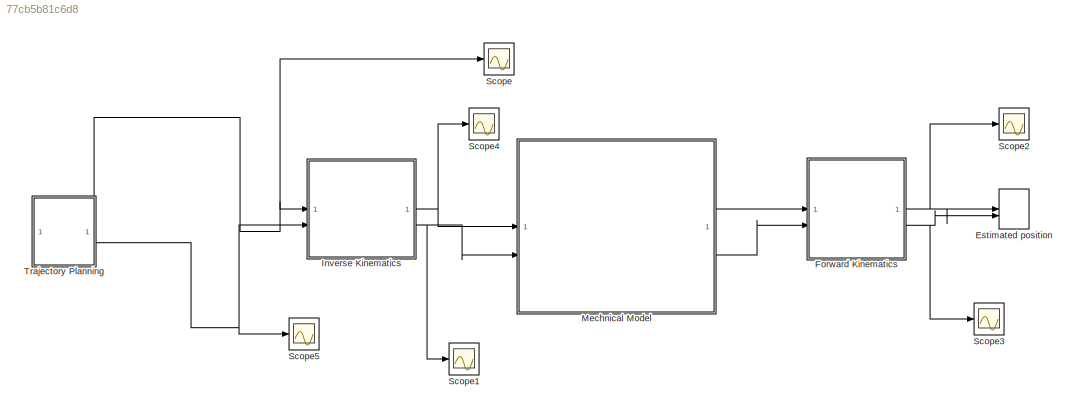
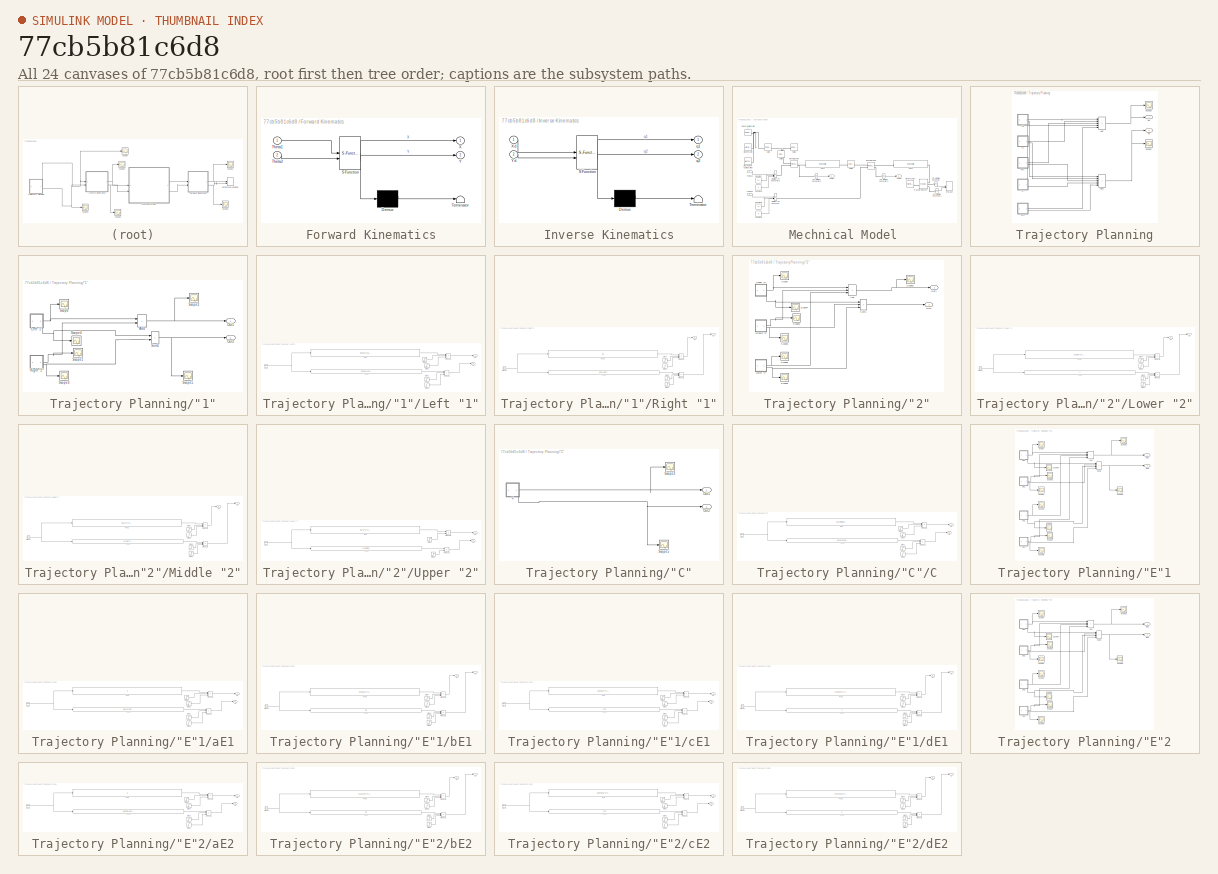
[diagram: thumbnail index - all 24 canvases of the model, root first then tree order]
MODEL slx_77cb5b81c6d8
KIND model
CONFIG AbsTol = auto
CONFIG EnableMultiTasking = on
CONFIG FixedStep = auto
CONFIG MaxStep = auto
CONFIG MinStep = auto
CONFIG RelTol = 1e-3
CONFIG SampleTimeConstraint = Unconstrained
CONFIG SolverName = VariableStepAuto
CONFIG StartTime = 0.0
CONFIG StopTime = 15
BLOCK [Record] Estimated position
  CompatibilityTag = XY
  FileSettingsInternal = {"entries":[{"content":{"excelSettings":{"content":{},"type":"Streamout.ExcelSettings"}},"type":"Streamout.FileSettingStorage","uuid":""}],"packageUris":["http:\/\/schema.mathworks.com\/mf0\/streamout_blocks\/R2020a"],"version":"1.0"}
  Layout = [1 1]
  SignalsInternal = {"entries":[{"content":{"signals":[{"content":{"blockPath":[],"dimensions":[1],"domain":"","lineColor":"#a2142f","plots":[ 1 ],"port":1,"sid":[""],"signalID":1,"signalName":"Forward Kinematics:1"},"type":"RecordBlkView.Signal","uuid":""},{"content":{"blockPath":[],"dimensions":[1],"domain":"","lineColor":"#139fff","plots":[ 1 ],"port":2,"sid":[""],"signalID":2,"signalName":"Forward Kinematics:2"},...<+186ch>
  VisualizationBindings = {"xyplotplugin":{"info":[{"series":[{"bindingParametersList":[{"parameter":"X-Axis","signalID":1,"signalName":"Forward Kinematics:1"},{"parameter":"Y-Axis","signalID":2,"signalName":"Forward Kinematics:2"}],"seriesID":0}],"subplotID":1}]}}
  st = -1
BLOCK [SubSystem] Forward Kinematics
  ErrorFcn = Stateflow.Translate.translate
  PermitHierarchicalResolution = ExplicitOnly
  SFBlockType = MATLAB Function
  TreatAsAtomicUnit = on
BLOCK [Demux] Forward Kinematics/ Demux 
  Outputs = 1
BLOCK [S-Function] Forward Kinematics/ SFunction 
  EnableBusSupport = on
  FunctionName = sf_sfun
  PortCounts = [2 3]
  SFcnIsStateOwnerBlock = off
  SFunctionDeploymentMode = off
  Tag = Stateflow S-Function 2
BLOCK [Terminator] Forward Kinematics/ Terminator 
BLOCK [Inport] Forward Kinematics/Theta1
BLOCK [Inport] Forward Kinematics/Theta2
  Port = 2
BLOCK [Outport] Forward Kinematics/X
  VectorParamsAs1DForOutWhenUnconnected = off
BLOCK [Outport] Forward Kinematics/Y
  Port = 2
  VectorParamsAs1DForOutWhenUnconnected = off
BLOCK [SubSystem] Inverse Kinematics
  ErrorFcn = Stateflow.Translate.translate
  PermitHierarchicalResolution = ExplicitOnly
  SFBlockType = MATLAB Function
  TreatAsAtomicUnit = on
BLOCK [Demux] Inverse Kinematics/ Demux 
  Outputs = 1
BLOCK [S-Function] Inverse Kinematics/ SFunction 
  EnableBusSupport = on
  FunctionName = sf_sfun
  PortCounts = [2 3]
  SFcnIsStateOwnerBlock = off
  SFunctionDeploymentMode = off
  Tag = Stateflow S-Function 1
BLOCK [Terminator] Inverse Kinematics/ Terminator 
BLOCK [Inport] Inverse Kinematics/Xd
BLOCK [Inport] Inverse Kinematics/Yd
  Port = 2
BLOCK [Outport] Inverse Kinematics/q1
  VectorParamsAs1DForOutWhenUnconnected = off
BLOCK [Outport] Inverse Kinematics/q2
  Port = 2
  VectorParamsAs1DForOutWhenUnconnected = off
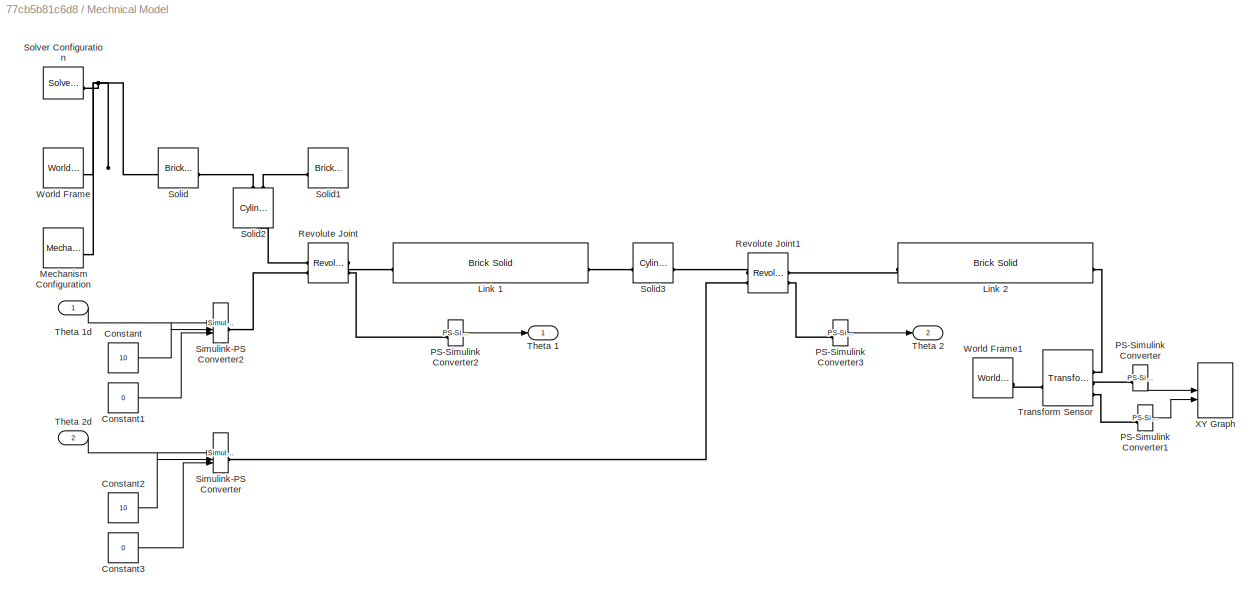
BLOCK [SubSystem] Mechnical Model 
BLOCK [Constant] Mechnical Model /Constant
  Value = 10
BLOCK [Constant] Mechnical Model /Constant1
  Value = 0
BLOCK [Constant] Mechnical Model /Constant2
  Value = 10
BLOCK [Constant] Mechnical Model /Constant3
  Value = 0
BLOCK [Reference] Mechnical Model /Link 1  REF=sm_lib/Body Elements/Brick Solid
  SourceBlock = sm_lib/Body Elements/Brick Solid
  SourceType = Brick Solid
BLOCK [Reference] Mechnical Model /Link 2  REF=sm_lib/Body Elements/Brick Solid
  SourceBlock = sm_lib/Body Elements/Brick Solid
  SourceType = Brick Solid
BLOCK [Reference] Mechnical Model /Mechanism Configuration  REF=sm_lib/Utilities/Mechanism
Configuration
  SourceBlock = sm_lib/Utilities/Mechanism\nConfiguration
  SourceType = Mechanism\nConfiguration
BLOCK [Reference] Mechnical Model /PS-Simulink Converter  REF=nesl_utility/PS-Simulink
Converter
  SourceBlock = nesl_utility/PS-Simulink\nConverter
  SourceType = PS-Simulink\nConverter
BLOCK [Reference] Mechnical Model /PS-Simulink Converter1  REF=nesl_utility/PS-Simulink
Converter
  SourceBlock = nesl_utility/PS-Simulink\nConverter
  SourceType = PS-Simulink\nConverter
BLOCK [Reference] Mechnical Model /PS-Simulink Converter2  REF=nesl_utility/PS-Simulink
Converter
  SourceBlock = nesl_utility/PS-Simulink\nConverter
  SourceType = PS-Simulink\nConverter
BLOCK [Reference] Mechnical Model /PS-Simulink Converter3  REF=nesl_utility/PS-Simulink
Converter
  SourceBlock = nesl_utility/PS-Simulink\nConverter
  SourceType = PS-Simulink\nConverter
BLOCK [Reference] Mechnical Model /Revolute Joint  REF=sm_lib/Joints/Revolute Joint
  SourceBlock = sm_lib/Joints/Revolute Joint
  SourceType = Revolute Joint
BLOCK [Reference] Mechnical Model /Revolute Joint1  REF=sm_lib/Joints/Revolute Joint
  SourceBlock = sm_lib/Joints/Revolute Joint
  SourceType = Revolute Joint
BLOCK [Reference] Mechnical Model /Simulink-PS Converter  REF=nesl_utility/Simulink-PS
Converter
  SourceBlock = nesl_utility/Simulink-PS\nConverter
  SourceType = Simulink-PS\nConverter
BLOCK [Reference] Mechnical Model /Simulink-PS Converter2  REF=nesl_utility/Simulink-PS
Converter
  SourceBlock = nesl_utility/Simulink-PS\nConverter
  SourceType = Simulink-PS\nConverter
BLOCK [Reference] Mechnical Model /Solid  REF=sm_lib/Body Elements/Brick Solid
  NameLocation = top
  SourceBlock = sm_lib/Body Elements/Brick Solid
  SourceType = Brick Solid
BLOCK [Reference] Mechnical Model /Solid1  REF=sm_lib/Body Elements/Brick Solid
  SourceBlock = sm_lib/Body Elements/Brick Solid
  SourceType = Brick Solid
BLOCK [Reference] Mechnical Model /Solid2  REF=sm_lib/Body Elements/Cylindrical Solid
  NameLocation = left
  SourceBlock = sm_lib/Body Elements/Cylindrical Solid
  SourceType = Cylindrical Solid
BLOCK [Reference] Mechnical Model /Solid3  REF=sm_lib/Body Elements/Cylindrical Solid
  SourceBlock = sm_lib/Body Elements/Cylindrical Solid
  SourceType = Cylindrical Solid
BLOCK [Reference] Mechnical Model /Solver Configuration  REF=nesl_utility/Solver
Configuration
  SourceBlock = nesl_utility/Solver\nConfiguration
  SourceType = Solver\nConfiguration
BLOCK [Outport] Mechnical Model /Theta 1
  VectorParamsAs1DForOutWhenUnconnected = off
BLOCK [Inport] Mechnical Model /Theta 1d
BLOCK [Outport] Mechnical Model /Theta 2
  Port = 2
  VectorParamsAs1DForOutWhenUnconnected = off
BLOCK [Inport] Mechnical Model /Theta 2d
  Port = 2
BLOCK [Reference] Mechnical Model /Transform Sensor  REF=sm_lib/Frames and
Transforms/Transform
Sensor
  SourceBlock = sm_lib/Frames and\nTransforms/Transform\nSensor
  SourceType = Transform\nSensor
BLOCK [Reference] Mechnical Model /World Frame  REF=sm_lib/Frames and
Transforms/World Frame
  SourceBlock = sm_lib/Frames and\nTransforms/World Frame
  SourceType = World Frame
BLOCK [Reference] Mechnical Model /World Frame1  REF=sm_lib/Frames and
Transforms/World Frame
  SourceBlock = sm_lib/Frames and\nTransforms/World Frame
  SourceType = World Frame
BLOCK [Record] Mechnical Model /XY Graph
  CompatibilityTag = XY
  FileSettingsInternal = {"entries":[{"content":{"excelSettings":{"content":{},"type":"Streamout.ExcelSettings"}},"type":"Streamout.FileSettingStorage","uuid":""}],"packageUris":["http:\/\/schema.mathworks.com\/mf0\/streamout_blocks\/R2020a"],"version":"1.0"}
  Layout = [1 1]
  SignalsInternal = {"entries":[{"content":{"signals":[{"content":{"blockPath":[],"dimensions":[1],"domain":"","lineColor":"#a2142f","plots":[ 1 ],"port":1,"sid":[""],"signalID":1,"signalName":"PS-Simulink\nConverter"},"type":"RecordBlkView.Signal","uuid":""},{"content":{"blockPath":[],"dimensions":[1],"domain":"","lineColor":"#139fff","plots":[ 1 ],"port":2,"sid":[""],"signalID":2,"signalName":"PS-Simulink\nConverte...<+191ch>
  VisualizationBindings = {"xyplotplugin":{"info":[{"series":[{"bindingParametersList":[{"parameter":"X-Axis","signalID":1,"signalName":"PS-Simulink\nConverter"},{"parameter":"Y-Axis","signalID":2,"signalName":"PS-Simulink\nConverter1"}],"seriesID":0}],"subplotID":1}]}}
  st = -1
BLOCK [Scope] Scope
  Floating = off
  NumInputPorts = 1
  ScopeSpecificationString = Simulink.scopes.TimeScopeBlockCfg('CurrentConfiguration', extmgr.ConfigurationSet(extmgr.Configuration('Core','General UI',true),extmgr.Configuration('Core','Source UI',true),extmgr.Configuration('Sources','WiredSimulink',true),extmgr.Configuration('Visuals','Time Domain',true,'SerializedDisplays',{struct('MinYLimReal','-0.1875','MaxYLimReal','1.6875','YLabelReal','','MinYLimMag','0.00000','MaxYLi...<+1424ch>
BLOCK [Scope] Scope1
  Floating = off
  NumInputPorts = 1
  ScopeSpecificationString = Simulink.scopes.TimeScopeBlockCfg('CurrentConfiguration', extmgr.ConfigurationSet(extmgr.Configuration('Core','General UI',true),extmgr.Configuration('Core','Source UI',true),extmgr.Configuration('Sources','WiredSimulink',true,'DataLoggingVariableName','ScopeData1'),extmgr.Configuration('Visuals','Time Domain',true,'SerializedDisplays',{struct('MinYLimReal','-1.51419','MaxYLimReal','-0.82694','YLa...<+1471ch>
BLOCK [Scope] Scope2
  Floating = off
  NumInputPorts = 1
  ScopeSpecificationString = Simulink.scopes.TimeScopeBlockCfg('CurrentConfiguration', extmgr.ConfigurationSet(extmgr.Configuration('Core','General UI',true),extmgr.Configuration('Core','Source UI',true),extmgr.Configuration('Sources','WiredSimulink',true,'DataLoggingVariableName','ScopeData2'),extmgr.Configuration('Visuals','Time Domain',true,'SerializedDisplays',{struct('MinYLimReal','0.4375','MaxYLimReal','1.0625','YLabelR...<+1458ch>
BLOCK [Scope] Scope3
  Floating = off
  NumInputPorts = 1
  ScopeSpecificationString = Simulink.scopes.TimeScopeBlockCfg('CurrentConfiguration', extmgr.ConfigurationSet(extmgr.Configuration('Core','General UI',true),extmgr.Configuration('Core','Source UI',true),extmgr.Configuration('Sources','WiredSimulink',true,'DataLoggingVariableName','ScopeData3'),extmgr.Configuration('Visuals','Time Domain',true,'SerializedDisplays',{struct('MinYLimReal','0.43775','MaxYLimReal','1.06028','YLabe...<+1466ch>
BLOCK [Scope] Scope4
  Floating = off
  NumInputPorts = 1
  ScopeSpecificationString = Simulink.scopes.TimeScopeBlockCfg('CurrentConfiguration', extmgr.ConfigurationSet(extmgr.Configuration('Core','General UI',true),extmgr.Configuration('Core','Source UI',true),extmgr.Configuration('Sources','WiredSimulink',true,'DataLoggingVariableName','ScopeData4'),extmgr.Configuration('Visuals','Time Domain',true,'SerializedDisplays',{struct('MinYLimReal','0.02073','MaxYLimReal','4.95293','YLabe...<+1467ch>
BLOCK [Scope] Scope5
  Floating = off
  NumInputPorts = 1
  ScopeSpecificationString = Simulink.scopes.TimeScopeBlockCfg('CurrentConfiguration', extmgr.ConfigurationSet(extmgr.Configuration('Core','General UI',true),extmgr.Configuration('Core','Source UI',true),extmgr.Configuration('Sources','WiredSimulink',true,'DataLoggingVariableName','ScopeData5'),extmgr.Configuration('Visuals','Time Domain',true,'SerializedDisplays',{struct('MinYLimReal','-0.3125','MaxYLimReal','2.8125','YLabel...<+1490ch>
BLOCK [SubSystem] Trajectory Planning
BLOCK [SubSystem] Trajectory Planning/"1"
BLOCK [Sum] Trajectory Planning/"1"/Add
  IconShape = rectangular
  LockScale = on
BLOCK [SubSystem] Trajectory Planning/"1"/Left "1"
BLOCK [Clock] Trajectory Planning/"1"/Left "1"/Clock
BLOCK [Fcn] Trajectory Planning/"1"/Left "1"/Fcn
  Expr = -509/110 + 36/11*u^1 -3/10*u^2 - 1/55*u^3
BLOCK [Fcn] Trajectory Planning/"1"/Left "1"/Fcn1
  Expr = -509/110 + 36/11*u^1 -3/10*u^2 - 1/55*u^3
BLOCK [Product] Trajectory Planning/"1"/Left "1"/Product1
  Inputs = 3
BLOCK [Product] Trajectory Planning/"1"/Left "1"/Product2
  Inputs = 3
BLOCK [Step] Trajectory Planning/"1"/Left "1"/Step1
  SampleTime = 0
  Time = 3
BLOCK [Step] Trajectory Planning/"1"/Left "1"/Step2
  After = 0
  Before = 1
  SampleTime = 0
  Time = 4
BLOCK [Step] Trajectory Planning/"1"/Left "1"/Step3
  After = 0
  Before = 1
  SampleTime = 0
  Time = 4
BLOCK [Step] Trajectory Planning/"1"/Left "1"/Step4
  SampleTime = 0
  Time = 3
BLOCK [Outport] Trajectory Planning/"1"/Left "1"/Xd
BLOCK [Outport] Trajectory Planning/"1"/Left "1"/Yd
  Port = 2
BLOCK [Outport] Trajectory Planning/"1"/Out1
BLOCK [Outport] Trajectory Planning/"1"/Out2
  Port = 2
BLOCK [SubSystem] Trajectory Planning/"1"/Right "1"
BLOCK [Clock] Trajectory Planning/"1"/Right "1"/Clock1
BLOCK [Fcn] Trajectory Planning/"1"/Right "1"/Fcn2
  Expr = 2.5
BLOCK [Fcn] Trajectory Planning/"1"/Right "1"/Fcn3
  Expr = -43/2 + 12*u^1 -3/2*u^2 + 0*u^3
BLOCK [Product] Trajectory Planning/"1"/Right "1"/Product1
  Inputs = 3
BLOCK [Product] Trajectory Planning/"1"/Right "1"/Product2
  Inputs = 3
BLOCK [Step] Trajectory Planning/"1"/Right "1"/Step1
  After = 0
  Before = 1
  SampleTime = 0
  Time = 5
BLOCK [Step] Trajectory Planning/"1"/Right "1"/Step2
  SampleTime = 0
  Time = 4
BLOCK [Step] Trajectory Planning/"1"/Right "1"/Step3
  After = 0
  Before = 1
  SampleTime = 0
  Time = 5
BLOCK [Step] Trajectory Planning/"1"/Right "1"/Step4
  SampleTime = 0
  Time = 4
BLOCK [Outport] Trajectory Planning/"1"/Right "1"/Xd
BLOCK [Outport] Trajectory Planning/"1"/Right "1"/Yd
  Port = 2
BLOCK [Scope] Trajectory Planning/"1"/Scope
  Floating = off
  NumInputPorts = 1
  ScopeSpecificationString = Simulink.scopes.TimeScopeBlockCfg('CurrentConfiguration', extmgr.ConfigurationSet(extmgr.Configuration('Core','General UI',true),extmgr.Configuration('Core','Source UI',true),extmgr.Configuration('Sources','WiredSimulink',true,'DataLoggingVariableName','ScopeData1'),extmgr.Configuration('Visuals','Time Domain',true,'SerializedDisplays',{struct('MinYLimReal','-0.1875','MaxYLimReal','1.6875','YLabel...<+1453ch>  <repeated x5 — deduplicated; at blocks: Scope, Scope2>
BLOCK [Scope] Trajectory Planning/"1"/Scope1
  Floating = off
  NumInputPorts = 1
  ScopeSpecificationString = Simulink.scopes.TimeScopeBlockCfg('CurrentConfiguration', extmgr.ConfigurationSet(extmgr.Configuration('Core','General UI',true),extmgr.Configuration('Core','Source UI',true),extmgr.Configuration('Sources','WiredSimulink',true,'DataLoggingVariableName','ScopeData2'),extmgr.Configuration('Visuals','Time Domain',true,'SerializedDisplays',{struct('MinYLimReal','-0.1875','MaxYLimReal','1.6875','YLabel...<+1484ch>  <repeated x4 — deduplicated; at blocks: Scope1>
BLOCK [Scope] Trajectory Planning/"1"/Scope2
  Floating = off
  NumInputPorts = 1
BLOCK [Scope] Trajectory Planning/"1"/Scope3
  Floating = off
  NumInputPorts = 1
  ScopeSpecificationString = Simulink.scopes.TimeScopeBlockCfg('CurrentConfiguration', extmgr.ConfigurationSet(extmgr.Configuration('Core','General UI',true),extmgr.Configuration('Core','Source UI',true),extmgr.Configuration('Sources','WiredSimulink',true,'DataLoggingVariableName','ScopeData1'),extmgr.Configuration('Visuals','Time Domain',true,'SerializedDisplays',{struct('MinYLimReal','-0.25','MaxYLimReal','2.25','YLabelReal...<+1442ch>  <repeated x4 — deduplicated; at blocks: Scope3>
BLOCK [Scope] Trajectory Planning/"1"/Scope4
  Floating = off
  NumInputPorts = 1
  ScopeSpecificationString = Simulink.scopes.TimeScopeBlockCfg('CurrentConfiguration', extmgr.ConfigurationSet(extmgr.Configuration('Core','General UI',true),extmgr.Configuration('Core','Source UI',true),extmgr.Configuration('Sources','WiredSimulink',true,'DataLoggingVariableName','ScopeData2'),extmgr.Configuration('Visuals','Time Domain',true,'SerializedDisplays',{struct('MinYLimReal','-0.25','MaxYLimReal','2.25','YLabelReal...<+1441ch>  <repeated x4 — deduplicated; at blocks: Scope4>
BLOCK [Scope] Trajectory Planning/"1"/Scope5
  Floating = off
  NumInputPorts = 1
  ScopeSpecificationString = Simulink.scopes.TimeScopeBlockCfg('CurrentConfiguration', extmgr.ConfigurationSet(extmgr.Configuration('Core','General UI',true),extmgr.Configuration('Core','Source UI',true),extmgr.Configuration('Sources','WiredSimulink',true,'DataLoggingVariableName','ScopeData2'),extmgr.Configuration('Visuals','Time Domain',true,'SerializedDisplays',{struct('MinYLimReal','-0.1875','MaxYLimReal','1.6875','YLabel...<+1453ch>  <repeated x3 — deduplicated; at blocks: Scope5>
BLOCK [Sum] Trajectory Planning/"1"/Sum1
  IconShape = rectangular
BLOCK [SubSystem] Trajectory Planning/"2"
BLOCK [Sum] Trajectory Planning/"2"/Add
  IconShape = rectangular
  Inputs = +++
  LockScale = on
BLOCK [SubSystem] Trajectory Planning/"2"/Lower "2"
BLOCK [Clock] Trajectory Planning/"2"/Lower "2"/Clock1
BLOCK [Fcn] Trajectory Planning/"2"/Lower "2"/Fcn2
  Expr = 57/2 -36*u^1 +15*u^2 -2*u^3
BLOCK [Fcn] Trajectory Planning/"2"/Lower "2"/Fcn3
  Expr = 1
BLOCK [Product] Trajectory Planning/"2"/Lower "2"/Product1
  Inputs = 3
BLOCK [Product] Trajectory Planning/"2"/Lower "2"/Product2
  Inputs = 3
BLOCK [Step] Trajectory Planning/"2"/Lower "2"/Step1
  After = 0
  Before = 1
  SampleTime = 0
  Time = 3
BLOCK [Step] Trajectory Planning/"2"/Lower "2"/Step2
  SampleTime = 0
  Time = 2
BLOCK [Step] Trajectory Planning/"2"/Lower "2"/Step3
  After = 0
  Before = 1
  SampleTime = 0
  Time = 3
BLOCK [Step] Trajectory Planning/"2"/Lower "2"/Step4
  SampleTime = 0
  Time = 2
BLOCK [Outport] Trajectory Planning/"2"/Lower "2"/Xd
BLOCK [Outport] Trajectory Planning/"2"/Lower "2"/Yd
  Port = 2
BLOCK [SubSystem] Trajectory Planning/"2"/Middle "2"
BLOCK [Clock] Trajectory Planning/"2"/Middle "2"/Clock1
BLOCK [Fcn] Trajectory Planning/"2"/Middle "2"/Fcn2
  Expr = -3.5 + 12*u^1 -9*u^2 + 2*u^3
BLOCK [Fcn] Trajectory Planning/"2"/Middle "2"/Fcn3
  Expr = -3 + 12*u^1 -9*u^2 + 2*u^3
BLOCK [Product] Trajectory Planning/"2"/Middle "2"/Product1
  Inputs = 3
BLOCK [Product] Trajectory Planning/"2"/Middle "2"/Product2
  Inputs = 3
BLOCK [Step] Trajectory Planning/"2"/Middle "2"/Step1
  After = 0
  Before = 1
  SampleTime = 0
  Time = 2
BLOCK [Step] Trajectory Planning/"2"/Middle "2"/Step2
  SampleTime = 0
  Time = 1.000000000000000000000000000001
BLOCK [Step] Trajectory Planning/"2"/Middle "2"/Step3
  After = 0
  Before = 1
  SampleTime = 0
  Time = 2
BLOCK [Step] Trajectory Planning/"2"/Middle "2"/Step4
  SampleTime = 0
  Time = 1.00000000000000000000000001
BLOCK [Outport] Trajectory Planning/"2"/Middle "2"/Xd
BLOCK [Outport] Trajectory Planning/"2"/Middle "2"/Yd
  Port = 2
BLOCK [Outport] Trajectory Planning/"2"/Out1
BLOCK [Outport] Trajectory Planning/"2"/Out2
  Port = 2
BLOCK [Scope] Trajectory Planning/"2"/Scope
  Floating = off
  NumInputPorts = 1
BLOCK [Scope] Trajectory Planning/"2"/Scope1
  Floating = off
  NumInputPorts = 1
BLOCK [Scope] Trajectory Planning/"2"/Scope2
  Floating = off
  NumInputPorts = 1
  ScopeSpecificationString = Simulink.scopes.TimeScopeBlockCfg('CurrentConfiguration', extmgr.ConfigurationSet(extmgr.Configuration('Core','General UI',true),extmgr.Configuration('Core','Source UI',true),extmgr.Configuration('Sources','WiredSimulink',true,'DataLoggingVariableName','ScopeData7'),extmgr.Configuration('Visuals','Time Domain',true,'SerializedDisplays',{struct('MinYLimReal','-0.1875','MaxYLimReal','1.6875','YLabel...<+1445ch>
BLOCK [Scope] Trajectory Planning/"2"/Scope3
  Floating = off
  NumInputPorts = 1
BLOCK [Scope] Trajectory Planning/"2"/Scope4
  Floating = off
  NumInputPorts = 1
BLOCK [Scope] Trajectory Planning/"2"/Scope5
  Floating = off
  NumInputPorts = 1
  ScopeSpecificationString = Simulink.scopes.TimeScopeBlockCfg('CurrentConfiguration', extmgr.ConfigurationSet(extmgr.Configuration('Core','General UI',true),extmgr.Configuration('Core','Source UI',true),extmgr.Configuration('Sources','WiredSimulink',true,'DataLoggingVariableName','ScopeData3'),extmgr.Configuration('Visuals','Time Domain',true,'SerializedDisplays',{struct('MinYLimReal','-0.1875','MaxYLimReal','1.6875','YLabel...<+1453ch>  <repeated x3 — deduplicated; at blocks: Scope5, Scope6>
BLOCK [Scope] Trajectory Planning/"2"/Scope6
  Floating = off
  NumInputPorts = 1
  ScopeSpecificationString = Simulink.scopes.TimeScopeBlockCfg('CurrentConfiguration', extmgr.ConfigurationSet(extmgr.Configuration('Core','General UI',true),extmgr.Configuration('Core','Source UI',true),extmgr.Configuration('Sources','WiredSimulink',true,'DataLoggingVariableName','ScopeData4'),extmgr.Configuration('Visuals','Time Domain',true,'SerializedDisplays',{struct('MinYLimReal','-0.125','MaxYLimReal','1.125','YLabelRe...<+1447ch>
BLOCK [Sum] Trajectory Planning/"2"/Sum1
  IconShape = rectangular
  Inputs = +++
BLOCK [SubSystem] Trajectory Planning/"2"/Upper "2"
BLOCK [Clock] Trajectory Planning/"2"/Upper "2"/Clock
BLOCK [Fcn] Trajectory Planning/"2"/Upper "2"/Fcn
  Expr = 0.5 + 0*u^1 + 3*u^2 - 2*u^3
BLOCK [Fcn] Trajectory Planning/"2"/Upper "2"/Fcn1
  Expr = 2 + 0.5*sin((pi)*(u-1)-pi)
BLOCK [Product] Trajectory Planning/"2"/Upper "2"/Product1
BLOCK [Product] Trajectory Planning/"2"/Upper "2"/Product2
BLOCK [Step] Trajectory Planning/"2"/Upper "2"/Step1
  After = 0
  Before = 1
  SampleTime = 0
BLOCK [Step] Trajectory Planning/"2"/Upper "2"/Step3
  After = 0
  Before = 1
  SampleTime = 0
BLOCK [Outport] Trajectory Planning/"2"/Upper "2"/Xd
BLOCK [Outport] Trajectory Planning/"2"/Upper "2"/Yd
  Port = 2
BLOCK [SubSystem] Trajectory Planning/"C"
BLOCK [SubSystem] Trajectory Planning/"C"/C
BLOCK [Clock] Trajectory Planning/"C"/C/Clock
BLOCK [Fcn] Trajectory Planning/"C"/C/Fcn
  Expr = 5.5+sin(pi*(u-9)-pi)
BLOCK [Fcn] Trajectory Planning/"C"/C/Fcn1
  Expr = -2549 + 810*u^1 -171/2*u^2 +3*u^3
BLOCK [Product] Trajectory Planning/"C"/C/Product1
  Inputs = 3
BLOCK [Product] Trajectory Planning/"C"/C/Product2
  Inputs = 3
BLOCK [Step] Trajectory Planning/"C"/C/Step1
  SampleTime = 0
  Time = 9
BLOCK [Step] Trajectory Planning/"C"/C/Step2
  After = 0
  Before = 1
  SampleTime = 0
  Time = 10
BLOCK [Step] Trajectory Planning/"C"/C/Step3
  After = 0
  Before = 1
  SampleTime = 0
  Time = 10
BLOCK [Step] Trajectory Planning/"C"/C/Step4
  SampleTime = 0
  Time = 9
BLOCK [Outport] Trajectory Planning/"C"/C/Xd
BLOCK [Outport] Trajectory Planning/"C"/C/Yd
  Port = 2
BLOCK [Outport] Trajectory Planning/"C"/Out1
BLOCK [Outport] Trajectory Planning/"C"/Out2
  Port = 2
BLOCK [Scope] Trajectory Planning/"C"/Scope2
  Floating = off
  NumInputPorts = 1
  ScopeSpecificationString = Simulink.scopes.TimeScopeBlockCfg('CurrentConfiguration', extmgr.ConfigurationSet(extmgr.Configuration('Core','General UI',true),extmgr.Configuration('Core','Source UI',true),extmgr.Configuration('Sources','WiredSimulink',true,'DataLoggingVariableName','ScopeData1'),extmgr.Configuration('Visuals','Time Domain',true,'SerializedDisplays',{struct('MinYLimReal','-0.6875','MaxYLimReal','6.1875','YLabel...<+1445ch>
BLOCK [Scope] Trajectory Planning/"C"/Scope5
  Floating = off
  NumInputPorts = 1
  ScopeSpecificationString = Simulink.scopes.TimeScopeBlockCfg('CurrentConfiguration', extmgr.ConfigurationSet(extmgr.Configuration('Core','General UI',true),extmgr.Configuration('Core','Source UI',true),extmgr.Configuration('Sources','WiredSimulink',true,'DataLoggingVariableName','ScopeData2'),extmgr.Configuration('Visuals','Time Domain',true,'SerializedDisplays',{struct('MinYLimReal','-0.3125','MaxYLimReal','2.8125','YLabel...<+1445ch>
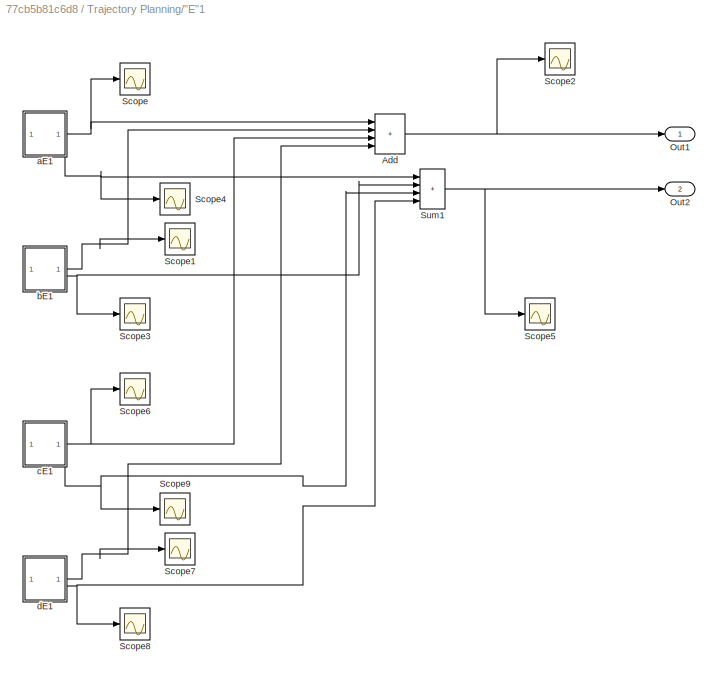
BLOCK [SubSystem] Trajectory Planning/"E"1
BLOCK [Sum] Trajectory Planning/"E"1/Add
  IconShape = rectangular
  Inputs = ++++
  LockScale = on
BLOCK [Outport] Trajectory Planning/"E"1/Out1
BLOCK [Outport] Trajectory Planning/"E"1/Out2
  Port = 2
BLOCK [Scope] Trajectory Planning/"E"1/Scope
  Floating = off
  NumInputPorts = 1
  ScopeSpecificationString = Simulink.scopes.TimeScopeBlockCfg('CurrentConfiguration', extmgr.ConfigurationSet(extmgr.Configuration('Core','General UI',true),extmgr.Configuration('Core','Source UI',true),extmgr.Configuration('Sources','WiredSimulink',true,'DataLoggingVariableName','ScopeData1'),extmgr.Configuration('Visuals','Time Domain',true,'SerializedDisplays',{struct('MinYLimReal','-0.375','MaxYLimReal','3.375','YLabelRe...<+1441ch>
BLOCK [Scope] Trajectory Planning/"E"1/Scope1
  Floating = off
  NumInputPorts = 1
BLOCK [Scope] Trajectory Planning/"E"1/Scope2
  Floating = off
  NumInputPorts = 1
BLOCK [Scope] Trajectory Planning/"E"1/Scope3
  Floating = off
  NumInputPorts = 1
BLOCK [Scope] Trajectory Planning/"E"1/Scope4
  Floating = off
  NumInputPorts = 1
BLOCK [Scope] Trajectory Planning/"E"1/Scope5
  Floating = off
  NumInputPorts = 1
BLOCK [Scope] Trajectory Planning/"E"1/Scope6
  Floating = off
  NumInputPorts = 1
BLOCK [Scope] Trajectory Planning/"E"1/Scope7
  Floating = off
  NumInputPorts = 1
  ScopeSpecificationString = Simulink.scopes.TimeScopeBlockCfg('CurrentConfiguration', extmgr.ConfigurationSet(extmgr.Configuration('Core','General UI',true),extmgr.Configuration('Core','Source UI',true),extmgr.Configuration('Sources','WiredSimulink',true,'DataLoggingVariableName','ScopeData4'),extmgr.Configuration('Visuals','Time Domain',true,'SerializedDisplays',{struct('MinYLimReal','-0.1875','MaxYLimReal','1.6875','YLabel...<+1484ch>
BLOCK [Scope] Trajectory Planning/"E"1/Scope8
  Floating = off
  NumInputPorts = 1
  ScopeSpecificationString = Simulink.scopes.TimeScopeBlockCfg('CurrentConfiguration', extmgr.ConfigurationSet(extmgr.Configuration('Core','General UI',true),extmgr.Configuration('Core','Source UI',true),extmgr.Configuration('Sources','WiredSimulink',true,'DataLoggingVariableName','ScopeData5'),extmgr.Configuration('Visuals','Time Domain',true,'SerializedDisplays',{struct('MinYLimReal','-0.25','MaxYLimReal','2.25','YLabelReal...<+1442ch>
BLOCK [Scope] Trajectory Planning/"E"1/Scope9
  Floating = off
  NumInputPorts = 1
  ScopeSpecificationString = Simulink.scopes.TimeScopeBlockCfg('CurrentConfiguration', extmgr.ConfigurationSet(extmgr.Configuration('Core','General UI',true),extmgr.Configuration('Core','Source UI',true),extmgr.Configuration('Sources','WiredSimulink',true,'DataLoggingVariableName','ScopeData6'),extmgr.Configuration('Visuals','Time Domain',true,'SerializedDisplays',{struct('MinYLimReal','-0.25','MaxYLimReal','2.25','YLabelReal...<+1441ch>
BLOCK [Sum] Trajectory Planning/"E"1/Sum1
  IconShape = rectangular
  Inputs = ++++
BLOCK [SubSystem] Trajectory Planning/"E"1/aE1
BLOCK [Clock] Trajectory Planning/"E"1/aE1/Clock
BLOCK [Fcn] Trajectory Planning/"E"1/aE1/Fcn
  Expr = 3
BLOCK [Fcn] Trajectory Planning/"E"1/aE1/Fcn1
  Expr = -485 + 270*u^1 -99/2*u^2 +3*u^3
BLOCK [Product] Trajectory Planning/"E"1/aE1/Product1
  Inputs = 3
BLOCK [Product] Trajectory Planning/"E"1/aE1/Product2
  Inputs = 3
BLOCK [Step] Trajectory Planning/"E"1/aE1/Step1
  SampleTime = 0
  Time = 5
BLOCK [Step] Trajectory Planning/"E"1/aE1/Step2
  After = 0
  Before = 1
  SampleTime = 0
  Time = 6
BLOCK [Step] Trajectory Planning/"E"1/aE1/Step3
  After = 0
  Before = 1
  SampleTime = 0
  Time = 6
BLOCK [Step] Trajectory Planning/"E"1/aE1/Step4
  SampleTime = 0
  Time = 5
BLOCK [Outport] Trajectory Planning/"E"1/aE1/Xd
BLOCK [Outport] Trajectory Planning/"E"1/aE1/Yd
  Port = 2
BLOCK [SubSystem] Trajectory Planning/"E"1/bE1
BLOCK [Clock] Trajectory Planning/"E"1/bE1/Clock1
BLOCK [Fcn] Trajectory Planning/"E"1/bE1/Fcn2
  Expr = 543 -252*u^1 +39*u^2 -2*u^3
BLOCK [Fcn] Trajectory Planning/"E"1/bE1/Fcn3
  Expr = 2.5
BLOCK [Product] Trajectory Planning/"E"1/bE1/Product1
  Inputs = 3
BLOCK [Product] Trajectory Planning/"E"1/bE1/Product2
  Inputs = 3
BLOCK [Step] Trajectory Planning/"E"1/bE1/Step1
  After = 0
  Before = 1
  SampleTime = 0
  Time = 7
BLOCK [Step] Trajectory Planning/"E"1/bE1/Step2
  SampleTime = 0
  Time = 6
BLOCK [Step] Trajectory Planning/"E"1/bE1/Step3
  After = 0
  Before = 1
  SampleTime = 0
  Time = 7
BLOCK [Step] Trajectory Planning/"E"1/bE1/Step4
  SampleTime = 0
  Time = 6
BLOCK [Outport] Trajectory Planning/"E"1/bE1/Xd
BLOCK [Outport] Trajectory Planning/"E"1/bE1/Yd
  Port = 2
BLOCK [SubSystem] Trajectory Planning/"E"1/cE1
BLOCK [Clock] Trajectory Planning/"E"1/cE1/Clock
BLOCK [Fcn] Trajectory Planning/"E"1/cE1/Fcn
  Expr = 836 - 336*u^1 +45*u^2 - 2*u^3
BLOCK [Fcn] Trajectory Planning/"E"1/cE1/Fcn1
  Expr = 1.75
BLOCK [Product] Trajectory Planning/"E"1/cE1/Product1
  Inputs = 3
BLOCK [Product] Trajectory Planning/"E"1/cE1/Product2
  Inputs = 3
BLOCK [Step] Trajectory Planning/"E"1/cE1/Step1
  SampleTime = 0
  Time = 7
BLOCK [Step] Trajectory Planning/"E"1/cE1/Step2
  After = 0
  Before = 1
  SampleTime = 0
  Time = 8
BLOCK [Step] Trajectory Planning/"E"1/cE1/Step3
  After = 0
  Before = 1
  SampleTime = 0
  Time = 8
BLOCK [Step] Trajectory Planning/"E"1/cE1/Step4
  SampleTime = 0
  Time = 7
BLOCK [Outport] Trajectory Planning/"E"1/cE1/Xd
BLOCK [Outport] Trajectory Planning/"E"1/cE1/Yd
  Port = 2
BLOCK [SubSystem] Trajectory Planning/"E"1/dE1
BLOCK [Clock] Trajectory Planning/"E"1/dE1/Clock1
BLOCK [Fcn] Trajectory Planning/"E"1/dE1/Fcn2
  Expr = 1219 -432*u^1 +51*u^2 -2*u^3
BLOCK [Fcn] Trajectory Planning/"E"1/dE1/Fcn3
  Expr = 1
BLOCK [Product] Trajectory Planning/"E"1/dE1/Product1
  Inputs = 3
BLOCK [Product] Trajectory Planning/"E"1/dE1/Product2
  Inputs = 3
BLOCK [Step] Trajectory Planning/"E"1/dE1/Step1
  After = 0
  Before = 1
  SampleTime = 0
  Time = 9
BLOCK [Step] Trajectory Planning/"E"1/dE1/Step2
  SampleTime = 0
  Time = 8
BLOCK [Step] Trajectory Planning/"E"1/dE1/Step3
  After = 0
  Before = 1
  SampleTime = 0
  Time = 9
BLOCK [Step] Trajectory Planning/"E"1/dE1/Step4
  SampleTime = 0
  Time = 8
BLOCK [Outport] Trajectory Planning/"E"1/dE1/Xd
BLOCK [Outport] Trajectory Planning/"E"1/dE1/Yd
  Port = 2
BLOCK [SubSystem] Trajectory Planning/"E"2
BLOCK [Sum] Trajectory Planning/"E"2/Add
  IconShape = rectangular
  Inputs = ++++
  LockScale = on
BLOCK [Outport] Trajectory Planning/"E"2/Out1
BLOCK [Outport] Trajectory Planning/"E"2/Out2
  Port = 2
BLOCK [Scope] Trajectory Planning/"E"2/Scope
  Floating = off
  NumInputPorts = 1
  ScopeSpecificationString = Simulink.scopes.TimeScopeBlockCfg('CurrentConfiguration', extmgr.ConfigurationSet(extmgr.Configuration('Core','General UI',true),extmgr.Configuration('Core','Source UI',true),extmgr.Configuration('Sources','WiredSimulink',true,'DataLoggingVariableName','ScopeData1'),extmgr.Configuration('Visuals','Time Domain',true,'SerializedDisplays',{struct('MinYLimReal','-0.75','MaxYLimReal','6.75','YLabelReal...<+1435ch>
BLOCK [Scope] Trajectory Planning/"E"2/Scope1
  Floating = off
  NumInputPorts = 1
BLOCK [Scope] Trajectory Planning/"E"2/Scope2
  Floating = off
  NumInputPorts = 1
BLOCK [Scope] Trajectory Planning/"E"2/Scope3
  Floating = off
  NumInputPorts = 1
BLOCK [Scope] Trajectory Planning/"E"2/Scope4
  Floating = off
  NumInputPorts = 1
BLOCK [Scope] Trajectory Planning/"E"2/Scope5
  Floating = off
  NumInputPorts = 1
BLOCK [Scope] Trajectory Planning/"E"2/Scope6
  Floating = off
  NumInputPorts = 1
BLOCK [Scope] Trajectory Planning/"E"2/Scope7
  Floating = off
  NumInputPorts = 1
  ScopeSpecificationString = Simulink.scopes.TimeScopeBlockCfg('CurrentConfiguration', extmgr.ConfigurationSet(extmgr.Configuration('Core','General UI',true),extmgr.Configuration('Core','Source UI',true),extmgr.Configuration('Sources','WiredSimulink',true,'DataLoggingVariableName','ScopeData4'),extmgr.Configuration('Visuals','Time Domain',true,'SerializedDisplays',{struct('MinYLimReal','-0.1875','MaxYLimReal','1.6875','YLabel...<+1484ch>
BLOCK [Scope] Trajectory Planning/"E"2/Scope8
  Floating = off
  NumInputPorts = 1
  ScopeSpecificationString = Simulink.scopes.TimeScopeBlockCfg('CurrentConfiguration', extmgr.ConfigurationSet(extmgr.Configuration('Core','General UI',true),extmgr.Configuration('Core','Source UI',true),extmgr.Configuration('Sources','WiredSimulink',true,'DataLoggingVariableName','ScopeData5'),extmgr.Configuration('Visuals','Time Domain',true,'SerializedDisplays',{struct('MinYLimReal','-0.25','MaxYLimReal','2.25','YLabelReal...<+1442ch>
BLOCK [Scope] Trajectory Planning/"E"2/Scope9
  Floating = off
  NumInputPorts = 1
  ScopeSpecificationString = Simulink.scopes.TimeScopeBlockCfg('CurrentConfiguration', extmgr.ConfigurationSet(extmgr.Configuration('Core','General UI',true),extmgr.Configuration('Core','Source UI',true),extmgr.Configuration('Sources','WiredSimulink',true,'DataLoggingVariableName','ScopeData6'),extmgr.Configuration('Visuals','Time Domain',true,'SerializedDisplays',{struct('MinYLimReal','-0.25','MaxYLimReal','2.25','YLabelReal...<+1441ch>
BLOCK [Sum] Trajectory Planning/"E"2/Sum1
  IconShape = rectangular
  Inputs = ++++
BLOCK [SubSystem] Trajectory Planning/"E"2/aE2
BLOCK [Clock] Trajectory Planning/"E"2/aE2/Clock
BLOCK [Fcn] Trajectory Planning/"E"2/aE2/Fcn
  Expr = 6
BLOCK [Fcn] Trajectory Planning/"E"2/aE2/Fcn1
  Expr = -6895/2 + 990*u^1 -189/2*u^2 +3*u^3
BLOCK [Product] Trajectory Planning/"E"2/aE2/Product1
  Inputs = 3
BLOCK [Product] Trajectory Planning/"E"2/aE2/Product2
  Inputs = 3
BLOCK [Step] Trajectory Planning/"E"2/aE2/Step1
  SampleTime = 0
  Time = 10
BLOCK [Step] Trajectory Planning/"E"2/aE2/Step2
  After = 0
  Before = 1
  SampleTime = 0
  Time = 11
BLOCK [Step] Trajectory Planning/"E"2/aE2/Step3
  After = 0
  Before = 1
  SampleTime = 0
  Time = 11
BLOCK [Step] Trajectory Planning/"E"2/aE2/Step4
  SampleTime = 0
  Time = 10
BLOCK [Outport] Trajectory Planning/"E"2/aE2/Xd
BLOCK [Outport] Trajectory Planning/"E"2/aE2/Yd
  Port = 2
BLOCK [SubSystem] Trajectory Planning/"E"2/bE2
BLOCK [Clock] Trajectory Planning/"E"2/bE2/Clock1
BLOCK [Fcn] Trajectory Planning/"E"2/bE2/Fcn2
  Expr = 3031 -792*u^1 +69*u^2 -2*u^3
BLOCK [Fcn] Trajectory Planning/"E"2/bE2/Fcn3
  Expr = 2.5
BLOCK [Product] Trajectory Planning/"E"2/bE2/Product1
  Inputs = 3
BLOCK [Product] Trajectory Planning/"E"2/bE2/Product2
  Inputs = 3
BLOCK [Step] Trajectory Planning/"E"2/bE2/Step1
  After = 0
  Before = 1
  SampleTime = 0
  Time = 12
BLOCK [Step] Trajectory Planning/"E"2/bE2/Step2
  SampleTime = 0
  Time = 11
BLOCK [Step] Trajectory Planning/"E"2/bE2/Step3
  After = 0
  Before = 1
  SampleTime = 0
  Time = 12
BLOCK [Step] Trajectory Planning/"E"2/bE2/Step4
  SampleTime = 0
  Time = 11
BLOCK [Outport] Trajectory Planning/"E"2/bE2/Xd
BLOCK [Outport] Trajectory Planning/"E"2/bE2/Yd
  Port = 2
BLOCK [SubSystem] Trajectory Planning/"E"2/cE2
BLOCK [Clock] Trajectory Planning/"E"2/cE2/Clock
BLOCK [Fcn] Trajectory Planning/"E"2/cE2/Fcn
  Expr = 3894 -936*u^1 +75*u^2 -2*u^3
BLOCK [Fcn] Trajectory Planning/"E"2/cE2/Fcn1
  Expr = 1.75
BLOCK [Product] Trajectory Planning/"E"2/cE2/Product1
  Inputs = 3
BLOCK [Product] Trajectory Planning/"E"2/cE2/Product2
  Inputs = 3
BLOCK [Step] Trajectory Planning/"E"2/cE2/Step1
  SampleTime = 0
  Time = 12
BLOCK [Step] Trajectory Planning/"E"2/cE2/Step2
  After = 0
  Before = 1
  SampleTime = 0
  Time = 13
BLOCK [Step] Trajectory Planning/"E"2/cE2/Step3
  After = 0
  Before = 1
  SampleTime = 0
  Time = 13
BLOCK [Step] Trajectory Planning/"E"2/cE2/Step4
  SampleTime = 0
  Time = 12
BLOCK [Outport] Trajectory Planning/"E"2/cE2/Xd
BLOCK [Outport] Trajectory Planning/"E"2/cE2/Yd
  Port = 2
BLOCK [SubSystem] Trajectory Planning/"E"2/dE2
BLOCK [Clock] Trajectory Planning/"E"2/dE2/Clock1
BLOCK [Fcn] Trajectory Planning/"E"2/dE2/Fcn2
  Expr = 4907 -1092*u^1 +81*u^2 -2*u^3
BLOCK [Fcn] Trajectory Planning/"E"2/dE2/Fcn3
  Expr = 1
BLOCK [Product] Trajectory Planning/"E"2/dE2/Product1
  Inputs = 3
BLOCK [Product] Trajectory Planning/"E"2/dE2/Product2
  Inputs = 3
BLOCK [Step] Trajectory Planning/"E"2/dE2/Step1
  After = 0
  Before = 1
  SampleTime = 0
  Time = 14
BLOCK [Step] Trajectory Planning/"E"2/dE2/Step2
  SampleTime = 0
  Time = 13
BLOCK [Step] Trajectory Planning/"E"2/dE2/Step3
  After = 0
  Before = 1
  SampleTime = 0
  Time = 14
BLOCK [Step] Trajectory Planning/"E"2/dE2/Step4
  SampleTime = 0
  Time = 13
BLOCK [Outport] Trajectory Planning/"E"2/dE2/Xd
BLOCK [Outport] Trajectory Planning/"E"2/dE2/Yd
  Port = 2
BLOCK [Sum] Trajectory Planning/Add
  IconShape = rectangular
  Inputs = +++++
BLOCK [Sum] Trajectory Planning/Add1
  IconShape = rectangular
  Inputs = +++++
BLOCK [Scope] Trajectory Planning/Scope2
  Floating = off
  NumInputPorts = 1
  ScopeSpecificationString = Simulink.scopes.TimeScopeBlockCfg('CurrentConfiguration', extmgr.ConfigurationSet(extmgr.Configuration('Core','General UI',true),extmgr.Configuration('Core','Source UI',true),extmgr.Configuration('Sources','WiredSimulink',true,'DataLoggingVariableName','ScopeData3'),extmgr.Configuration('Visuals','Time Domain',true,'SerializedDisplays',{struct('MinYLimReal','-0.875','MaxYLimReal','7.875','YLabelRe...<+1439ch>
BLOCK [Scope] Trajectory Planning/Scope7
  Floating = off
  NumInputPorts = 1
  ScopeSpecificationString = Simulink.scopes.TimeScopeBlockCfg('CurrentConfiguration', extmgr.ConfigurationSet(extmgr.Configuration('Core','General UI',true),extmgr.Configuration('Core','Source UI',true),extmgr.Configuration('Sources','WiredSimulink',true,'DataLoggingVariableName','ScopeData5'),extmgr.Configuration('Visuals','Time Domain',true,'SerializedDisplays',{struct('MinYLimReal','-0.25','MaxYLimReal','2.25','YLabelReal...<+1434ch>
BLOCK [Outport] Trajectory Planning/Xd
  VectorParamsAs1DForOutWhenUnconnected = off
BLOCK [Outport] Trajectory Planning/Yd
  Port = 2
  VectorParamsAs1DForOutWhenUnconnected = off
NET Forward Kinematics:1 -> Estimated position:1, Scope2:1
NET Forward Kinematics:2 -> Estimated position:2, Scope3:1
NET Inverse Kinematics:1 -> Mechnical Model :1, Scope4:1
NET Inverse Kinematics:2 -> Mechnical Model :2, Scope1:1
LINE Mechnical Model /Constant1:1 -> Mechnical Model /Simulink-PS Converter2:3
LINE Mechnical Model /Constant2:1 -> Mechnical Model /Simulink-PS Converter:2
LINE Mechnical Model /Constant3:1 -> Mechnical Model /Simulink-PS Converter:3
LINE Mechnical Model /Constant:1 -> Mechnical Model /Simulink-PS Converter2:2
LINE Mechnical Model /PS-Simulink Converter1:1 -> Mechnical Model /XY Graph:2
LINE Mechnical Model /PS-Simulink Converter2:1 -> Mechnical Model /Theta 1:1
LINE Mechnical Model /PS-Simulink Converter3:1 -> Mechnical Model /Theta 2:1
LINE Mechnical Model /PS-Simulink Converter:1 -> Mechnical Model /XY Graph:1
LINE Mechnical Model /Theta 1d:1 -> Mechnical Model /Simulink-PS Converter2:1
LINE Mechnical Model /Theta 2d:1 -> Mechnical Model /Simulink-PS Converter:1
LINE Mechnical Model :1 -> Forward Kinematics:1
LINE Mechnical Model :2 -> Forward Kinematics:2
NET Trajectory Planning/"1"/Add:1 -> Trajectory Planning/"1"/Out1:1, Trajectory Planning/"1"/Scope2:1
NET Trajectory Planning/"1"/Left "1"/Clock:1 -> Trajectory Planning/"1"/Left "1"/Fcn1:1, Trajectory Planning/"1"/Left "1"/Fcn:1
LINE Trajectory Planning/"1"/Left "1"/Fcn1:1 -> Trajectory Planning/"1"/Left "1"/Product1:1
LINE Trajectory Planning/"1"/Left "1"/Fcn:1 -> Trajectory Planning/"1"/Left "1"/Product2:1
LINE Trajectory Planning/"1"/Left "1"/Product1:1 -> Trajectory Planning/"1"/Left "1"/Yd:1
LINE Trajectory Planning/"1"/Left "1"/Product2:1 -> Trajectory Planning/"1"/Left "1"/Xd:1
LINE Trajectory Planning/"1"/Left "1"/Step1:1 -> Trajectory Planning/"1"/Left "1"/Product1:2
LINE Trajectory Planning/"1"/Left "1"/Step2:1 -> Trajectory Planning/"1"/Left "1"/Product2:3
LINE Trajectory Planning/"1"/Left "1"/Step3:1 -> Trajectory Planning/"1"/Left "1"/Product1:3
LINE Trajectory Planning/"1"/Left "1"/Step4:1 -> Trajectory Planning/"1"/Left "1"/Product2:2
NET Trajectory Planning/"1"/Left "1":1 -> Trajectory Planning/"1"/Add:1, Trajectory Planning/"1"/Scope:1
NET Trajectory Planning/"1"/Left "1":2 -> Trajectory Planning/"1"/Scope4:1, Trajectory Planning/"1"/Sum1:1
NET Trajectory Planning/"1"/Right "1"/Clock1:1 -> Trajectory Planning/"1"/Right "1"/Fcn2:1, Trajectory Planning/"1"/Right "1"/Fcn3:1
LINE Trajectory Planning/"1"/Right "1"/Fcn2:1 -> Trajectory Planning/"1"/Right "1"/Product2:1
LINE Trajectory Planning/"1"/Right "1"/Fcn3:1 -> Trajectory Planning/"1"/Right "1"/Product1:1
LINE Trajectory Planning/"1"/Right "1"/Product1:1 -> Trajectory Planning/"1"/Right "1"/Yd:1
LINE Trajectory Planning/"1"/Right "1"/Product2:1 -> Trajectory Planning/"1"/Right "1"/Xd:1
LINE Trajectory Planning/"1"/Right "1"/Step1:1 -> Trajectory Planning/"1"/Right "1"/Product1:3
LINE Trajectory Planning/"1"/Right "1"/Step2:1 -> Trajectory Planning/"1"/Right "1"/Product1:2
LINE Trajectory Planning/"1"/Right "1"/Step3:1 -> Trajectory Planning/"1"/Right "1"/Product2:3
LINE Trajectory Planning/"1"/Right "1"/Step4:1 -> Trajectory Planning/"1"/Right "1"/Product2:2
NET Trajectory Planning/"1"/Right "1":1 -> Trajectory Planning/"1"/Add:2, Trajectory Planning/"1"/Scope1:1
NET Trajectory Planning/"1"/Right "1":2 -> Trajectory Planning/"1"/Scope3:1, Trajectory Planning/"1"/Sum1:2
NET Trajectory Planning/"1"/Sum1:1 -> Trajectory Planning/"1"/Out2:1, Trajectory Planning/"1"/Scope5:1
LINE Trajectory Planning/"1":1 -> Trajectory Planning/Add:2
LINE Trajectory Planning/"1":2 -> Trajectory Planning/Add1:2
NET Trajectory Planning/"2"/Add:1 -> Trajectory Planning/"2"/Out1:1, Trajectory Planning/"2"/Scope2:1
NET Trajectory Planning/"2"/Lower "2"/Clock1:1 -> Trajectory Planning/"2"/Lower "2"/Fcn2:1, Trajectory Planning/"2"/Lower "2"/Fcn3:1
LINE Trajectory Planning/"2"/Lower "2"/Fcn2:1 -> Trajectory Planning/"2"/Lower "2"/Product2:1
LINE Trajectory Planning/"2"/Lower "2"/Fcn3:1 -> Trajectory Planning/"2"/Lower "2"/Product1:1
LINE Trajectory Planning/"2"/Lower "2"/Product1:1 -> Trajectory Planning/"2"/Lower "2"/Yd:1
LINE Trajectory Planning/"2"/Lower "2"/Product2:1 -> Trajectory Planning/"2"/Lower "2"/Xd:1
LINE Trajectory Planning/"2"/Lower "2"/Step1:1 -> Trajectory Planning/"2"/Lower "2"/Product1:3
LINE Trajectory Planning/"2"/Lower "2"/Step2:1 -> Trajectory Planning/"2"/Lower "2"/Product1:2
LINE Trajectory Planning/"2"/Lower "2"/Step3:1 -> Trajectory Planning/"2"/Lower "2"/Product2:3
LINE Trajectory Planning/"2"/Lower "2"/Step4:1 -> Trajectory Planning/"2"/Lower "2"/Product2:2
NET Trajectory Planning/"2"/Lower "2":1 -> Trajectory Planning/"2"/Add:3, Trajectory Planning/"2"/Scope5:1
NET Trajectory Planning/"2"/Lower "2":2 -> Trajectory Planning/"2"/Scope6:1, Trajectory Planning/"2"/Sum1:3
NET Trajectory Planning/"2"/Middle "2"/Clock1:1 -> Trajectory Planning/"2"/Middle "2"/Fcn2:1, Trajectory Planning/"2"/Middle "2"/Fcn3:1
LINE Trajectory Planning/"2"/Middle "2"/Fcn2:1 -> Trajectory Planning/"2"/Middle "2"/Product2:1
LINE Trajectory Planning/"2"/Middle "2"/Fcn3:1 -> Trajectory Planning/"2"/Middle "2"/Product1:1
LINE Trajectory Planning/"2"/Middle "2"/Product1:1 -> Trajectory Planning/"2"/Middle "2"/Yd:1
LINE Trajectory Planning/"2"/Middle "2"/Product2:1 -> Trajectory Planning/"2"/Middle "2"/Xd:1
LINE Trajectory Planning/"2"/Middle "2"/Step1:1 -> Trajectory Planning/"2"/Middle "2"/Product1:3
LINE Trajectory Planning/"2"/Middle "2"/Step2:1 -> Trajectory Planning/"2"/Middle "2"/Product1:2
LINE Trajectory Planning/"2"/Middle "2"/Step3:1 -> Trajectory Planning/"2"/Middle "2"/Product2:3
LINE Trajectory Planning/"2"/Middle "2"/Step4:1 -> Trajectory Planning/"2"/Middle "2"/Product2:2
NET Trajectory Planning/"2"/Middle "2":1 -> Trajectory Planning/"2"/Add:2, Trajectory Planning/"2"/Scope1:1
NET Trajectory Planning/"2"/Middle "2":2 -> Trajectory Planning/"2"/Scope3:1, Trajectory Planning/"2"/Sum1:2
LINE Trajectory Planning/"2"/Sum1:1 -> Trajectory Planning/"2"/Out2:1
NET Trajectory Planning/"2"/Upper "2"/Clock:1 -> Trajectory Planning/"2"/Upper "2"/Fcn1:1, Trajectory Planning/"2"/Upper "2"/Fcn:1
LINE Trajectory Planning/"2"/Upper "2"/Fcn1:1 -> Trajectory Planning/"2"/Upper "2"/Product1:1
LINE Trajectory Planning/"2"/Upper "2"/Fcn:1 -> Trajectory Planning/"2"/Upper "2"/Product2:1
LINE Trajectory Planning/"2"/Upper "2"/Product1:1 -> Trajectory Planning/"2"/Upper "2"/Yd:1
LINE Trajectory Planning/"2"/Upper "2"/Product2:1 -> Trajectory Planning/"2"/Upper "2"/Xd:1
LINE Trajectory Planning/"2"/Upper "2"/Step1:1 -> Trajectory Planning/"2"/Upper "2"/Product1:2
LINE Trajectory Planning/"2"/Upper "2"/Step3:1 -> Trajectory Planning/"2"/Upper "2"/Product2:2
NET Trajectory Planning/"2"/Upper "2":1 -> Trajectory Planning/"2"/Add:1, Trajectory Planning/"2"/Scope:1
NET Trajectory Planning/"2"/Upper "2":2 -> Trajectory Planning/"2"/Scope4:1, Trajectory Planning/"2"/Sum1:1
LINE Trajectory Planning/"2":1 -> Trajectory Planning/Add:1
LINE Trajectory Planning/"2":2 -> Trajectory Planning/Add1:1
NET Trajectory Planning/"C"/C/Clock:1 -> Trajectory Planning/"C"/C/Fcn1:1, Trajectory Planning/"C"/C/Fcn:1
LINE Trajectory Planning/"C"/C/Fcn1:1 -> Trajectory Planning/"C"/C/Product1:1
LINE Trajectory Planning/"C"/C/Fcn:1 -> Trajectory Planning/"C"/C/Product2:1
LINE Trajectory Planning/"C"/C/Product1:1 -> Trajectory Planning/"C"/C/Yd:1
LINE Trajectory Planning/"C"/C/Product2:1 -> Trajectory Planning/"C"/C/Xd:1
LINE Trajectory Planning/"C"/C/Step1:1 -> Trajectory Planning/"C"/C/Product1:2
LINE Trajectory Planning/"C"/C/Step2:1 -> Trajectory Planning/"C"/C/Product2:3
LINE Trajectory Planning/"C"/C/Step3:1 -> Trajectory Planning/"C"/C/Product1:3
LINE Trajectory Planning/"C"/C/Step4:1 -> Trajectory Planning/"C"/C/Product2:2
NET Trajectory Planning/"C"/C:1 -> Trajectory Planning/"C"/Out1:1, Trajectory Planning/"C"/Scope2:1
NET Trajectory Planning/"C"/C:2 -> Trajectory Planning/"C"/Out2:1, Trajectory Planning/"C"/Scope5:1
LINE Trajectory Planning/"C":1 -> Trajectory Planning/Add:4
LINE Trajectory Planning/"C":2 -> Trajectory Planning/Add1:4
NET Trajectory Planning/"E"1/Add:1 -> Trajectory Planning/"E"1/Out1:1, Trajectory Planning/"E"1/Scope2:1
NET Trajectory Planning/"E"1/Sum1:1 -> Trajectory Planning/"E"1/Out2:1, Trajectory Planning/"E"1/Scope5:1
NET Trajectory Planning/"E"1/aE1/Clock:1 -> Trajectory Planning/"E"1/aE1/Fcn1:1, Trajectory Planning/"E"1/aE1/Fcn:1
LINE Trajectory Planning/"E"1/aE1/Fcn1:1 -> Trajectory Planning/"E"1/aE1/Product1:1
LINE Trajectory Planning/"E"1/aE1/Fcn:1 -> Trajectory Planning/"E"1/aE1/Product2:1
LINE Trajectory Planning/"E"1/aE1/Product1:1 -> Trajectory Planning/"E"1/aE1/Yd:1
LINE Trajectory Planning/"E"1/aE1/Product2:1 -> Trajectory Planning/"E"1/aE1/Xd:1
LINE Trajectory Planning/"E"1/aE1/Step1:1 -> Trajectory Planning/"E"1/aE1/Product1:2
LINE Trajectory Planning/"E"1/aE1/Step2:1 -> Trajectory Planning/"E"1/aE1/Product2:3
LINE Trajectory Planning/"E"1/aE1/Step3:1 -> Trajectory Planning/"E"1/aE1/Product1:3
LINE Trajectory Planning/"E"1/aE1/Step4:1 -> Trajectory Planning/"E"1/aE1/Product2:2
NET Trajectory Planning/"E"1/aE1:1 -> Trajectory Planning/"E"1/Add:1, Trajectory Planning/"E"1/Scope:1
NET Trajectory Planning/"E"1/aE1:2 -> Trajectory Planning/"E"1/Scope4:1, Trajectory Planning/"E"1/Sum1:1
NET Trajectory Planning/"E"1/bE1/Clock1:1 -> Trajectory Planning/"E"1/bE1/Fcn2:1, Trajectory Planning/"E"1/bE1/Fcn3:1
LINE Trajectory Planning/"E"1/bE1/Fcn2:1 -> Trajectory Planning/"E"1/bE1/Product2:1
LINE Trajectory Planning/"E"1/bE1/Fcn3:1 -> Trajectory Planning/"E"1/bE1/Product1:1
LINE Trajectory Planning/"E"1/bE1/Product1:1 -> Trajectory Planning/"E"1/bE1/Yd:1
LINE Trajectory Planning/"E"1/bE1/Product2:1 -> Trajectory Planning/"E"1/bE1/Xd:1
LINE Trajectory Planning/"E"1/bE1/Step1:1 -> Trajectory Planning/"E"1/bE1/Product1:3
LINE Trajectory Planning/"E"1/bE1/Step2:1 -> Trajectory Planning/"E"1/bE1/Product1:2
LINE Trajectory Planning/"E"1/bE1/Step3:1 -> Trajectory Planning/"E"1/bE1/Product2:3
LINE Trajectory Planning/"E"1/bE1/Step4:1 -> Trajectory Planning/"E"1/bE1/Product2:2
NET Trajectory Planning/"E"1/bE1:1 -> Trajectory Planning/"E"1/Add:2, Trajectory Planning/"E"1/Scope1:1
NET Trajectory Planning/"E"1/bE1:2 -> Trajectory Planning/"E"1/Scope3:1, Trajectory Planning/"E"1/Sum1:2
NET Trajectory Planning/"E"1/cE1/Clock:1 -> Trajectory Planning/"E"1/cE1/Fcn1:1, Trajectory Planning/"E"1/cE1/Fcn:1
LINE Trajectory Planning/"E"1/cE1/Fcn1:1 -> Trajectory Planning/"E"1/cE1/Product1:1
LINE Trajectory Planning/"E"1/cE1/Fcn:1 -> Trajectory Planning/"E"1/cE1/Product2:1
LINE Trajectory Planning/"E"1/cE1/Product1:1 -> Trajectory Planning/"E"1/cE1/Yd:1
LINE Trajectory Planning/"E"1/cE1/Product2:1 -> Trajectory Planning/"E"1/cE1/Xd:1
LINE Trajectory Planning/"E"1/cE1/Step1:1 -> Trajectory Planning/"E"1/cE1/Product1:2
LINE Trajectory Planning/"E"1/cE1/Step2:1 -> Trajectory Planning/"E"1/cE1/Product2:3
LINE Trajectory Planning/"E"1/cE1/Step3:1 -> Trajectory Planning/"E"1/cE1/Product1:3
LINE Trajectory Planning/"E"1/cE1/Step4:1 -> Trajectory Planning/"E"1/cE1/Product2:2
NET Trajectory Planning/"E"1/cE1:1 -> Trajectory Planning/"E"1/Add:3, Trajectory Planning/"E"1/Scope6:1
NET Trajectory Planning/"E"1/cE1:2 -> Trajectory Planning/"E"1/Scope9:1, Trajectory Planning/"E"1/Sum1:3
NET Trajectory Planning/"E"1/dE1/Clock1:1 -> Trajectory Planning/"E"1/dE1/Fcn2:1, Trajectory Planning/"E"1/dE1/Fcn3:1
LINE Trajectory Planning/"E"1/dE1/Fcn2:1 -> Trajectory Planning/"E"1/dE1/Product2:1
LINE Trajectory Planning/"E"1/dE1/Fcn3:1 -> Trajectory Planning/"E"1/dE1/Product1:1
LINE Trajectory Planning/"E"1/dE1/Product1:1 -> Trajectory Planning/"E"1/dE1/Yd:1
LINE Trajectory Planning/"E"1/dE1/Product2:1 -> Trajectory Planning/"E"1/dE1/Xd:1
LINE Trajectory Planning/"E"1/dE1/Step1:1 -> Trajectory Planning/"E"1/dE1/Product1:3
LINE Trajectory Planning/"E"1/dE1/Step2:1 -> Trajectory Planning/"E"1/dE1/Product1:2
LINE Trajectory Planning/"E"1/dE1/Step3:1 -> Trajectory Planning/"E"1/dE1/Product2:3
LINE Trajectory Planning/"E"1/dE1/Step4:1 -> Trajectory Planning/"E"1/dE1/Product2:2
NET Trajectory Planning/"E"1/dE1:1 -> Trajectory Planning/"E"1/Add:4, Trajectory Planning/"E"1/Scope7:1
NET Trajectory Planning/"E"1/dE1:2 -> Trajectory Planning/"E"1/Scope8:1, Trajectory Planning/"E"1/Sum1:4
LINE Trajectory Planning/"E"1:1 -> Trajectory Planning/Add:3
LINE Trajectory Planning/"E"1:2 -> Trajectory Planning/Add1:3
NET Trajectory Planning/"E"2/Add:1 -> Trajectory Planning/"E"2/Out1:1, Trajectory Planning/"E"2/Scope2:1
NET Trajectory Planning/"E"2/Sum1:1 -> Trajectory Planning/"E"2/Out2:1, Trajectory Planning/"E"2/Scope5:1
NET Trajectory Planning/"E"2/aE2/Clock:1 -> Trajectory Planning/"E"2/aE2/Fcn1:1, Trajectory Planning/"E"2/aE2/Fcn:1
LINE Trajectory Planning/"E"2/aE2/Fcn1:1 -> Trajectory Planning/"E"2/aE2/Product1:1
LINE Trajectory Planning/"E"2/aE2/Fcn:1 -> Trajectory Planning/"E"2/aE2/Product2:1
LINE Trajectory Planning/"E"2/aE2/Product1:1 -> Trajectory Planning/"E"2/aE2/Yd:1
LINE Trajectory Planning/"E"2/aE2/Product2:1 -> Trajectory Planning/"E"2/aE2/Xd:1
LINE Trajectory Planning/"E"2/aE2/Step1:1 -> Trajectory Planning/"E"2/aE2/Product1:2
LINE Trajectory Planning/"E"2/aE2/Step2:1 -> Trajectory Planning/"E"2/aE2/Product2:3
LINE Trajectory Planning/"E"2/aE2/Step3:1 -> Trajectory Planning/"E"2/aE2/Product1:3
LINE Trajectory Planning/"E"2/aE2/Step4:1 -> Trajectory Planning/"E"2/aE2/Product2:2
NET Trajectory Planning/"E"2/aE2:1 -> Trajectory Planning/"E"2/Add:1, Trajectory Planning/"E"2/Scope:1
NET Trajectory Planning/"E"2/aE2:2 -> Trajectory Planning/"E"2/Scope4:1, Trajectory Planning/"E"2/Sum1:1
NET Trajectory Planning/"E"2/bE2/Clock1:1 -> Trajectory Planning/"E"2/bE2/Fcn2:1, Trajectory Planning/"E"2/bE2/Fcn3:1
LINE Trajectory Planning/"E"2/bE2/Fcn2:1 -> Trajectory Planning/"E"2/bE2/Product2:1
LINE Trajectory Planning/"E"2/bE2/Fcn3:1 -> Trajectory Planning/"E"2/bE2/Product1:1
LINE Trajectory Planning/"E"2/bE2/Product1:1 -> Trajectory Planning/"E"2/bE2/Yd:1
LINE Trajectory Planning/"E"2/bE2/Product2:1 -> Trajectory Planning/"E"2/bE2/Xd:1
LINE Trajectory Planning/"E"2/bE2/Step1:1 -> Trajectory Planning/"E"2/bE2/Product1:3
LINE Trajectory Planning/"E"2/bE2/Step2:1 -> Trajectory Planning/"E"2/bE2/Product1:2
LINE Trajectory Planning/"E"2/bE2/Step3:1 -> Trajectory Planning/"E"2/bE2/Product2:3
LINE Trajectory Planning/"E"2/bE2/Step4:1 -> Trajectory Planning/"E"2/bE2/Product2:2
NET Trajectory Planning/"E"2/bE2:1 -> Trajectory Planning/"E"2/Add:2, Trajectory Planning/"E"2/Scope1:1
NET Trajectory Planning/"E"2/bE2:2 -> Trajectory Planning/"E"2/Scope3:1, Trajectory Planning/"E"2/Sum1:2
NET Trajectory Planning/"E"2/cE2/Clock:1 -> Trajectory Planning/"E"2/cE2/Fcn1:1, Trajectory Planning/"E"2/cE2/Fcn:1
LINE Trajectory Planning/"E"2/cE2/Fcn1:1 -> Trajectory Planning/"E"2/cE2/Product1:1
LINE Trajectory Planning/"E"2/cE2/Fcn:1 -> Trajectory Planning/"E"2/cE2/Product2:1
LINE Trajectory Planning/"E"2/cE2/Product1:1 -> Trajectory Planning/"E"2/cE2/Yd:1
LINE Trajectory Planning/"E"2/cE2/Product2:1 -> Trajectory Planning/"E"2/cE2/Xd:1
LINE Trajectory Planning/"E"2/cE2/Step1:1 -> Trajectory Planning/"E"2/cE2/Product1:2
LINE Trajectory Planning/"E"2/cE2/Step2:1 -> Trajectory Planning/"E"2/cE2/Product2:3
LINE Trajectory Planning/"E"2/cE2/Step3:1 -> Trajectory Planning/"E"2/cE2/Product1:3
LINE Trajectory Planning/"E"2/cE2/Step4:1 -> Trajectory Planning/"E"2/cE2/Product2:2
NET Trajectory Planning/"E"2/cE2:1 -> Trajectory Planning/"E"2/Add:3, Trajectory Planning/"E"2/Scope6:1
NET Trajectory Planning/"E"2/cE2:2 -> Trajectory Planning/"E"2/Scope9:1, Trajectory Planning/"E"2/Sum1:3
NET Trajectory Planning/"E"2/dE2/Clock1:1 -> Trajectory Planning/"E"2/dE2/Fcn2:1, Trajectory Planning/"E"2/dE2/Fcn3:1
LINE Trajectory Planning/"E"2/dE2/Fcn2:1 -> Trajectory Planning/"E"2/dE2/Product2:1
LINE Trajectory Planning/"E"2/dE2/Fcn3:1 -> Trajectory Planning/"E"2/dE2/Product1:1
LINE Trajectory Planning/"E"2/dE2/Product1:1 -> Trajectory Planning/"E"2/dE2/Yd:1
LINE Trajectory Planning/"E"2/dE2/Product2:1 -> Trajectory Planning/"E"2/dE2/Xd:1
LINE Trajectory Planning/"E"2/dE2/Step1:1 -> Trajectory Planning/"E"2/dE2/Product1:3
LINE Trajectory Planning/"E"2/dE2/Step2:1 -> Trajectory Planning/"E"2/dE2/Product1:2
LINE Trajectory Planning/"E"2/dE2/Step3:1 -> Trajectory Planning/"E"2/dE2/Product2:3
LINE Trajectory Planning/"E"2/dE2/Step4:1 -> Trajectory Planning/"E"2/dE2/Product2:2
NET Trajectory Planning/"E"2/dE2:1 -> Trajectory Planning/"E"2/Add:4, Trajectory Planning/"E"2/Scope7:1
NET Trajectory Planning/"E"2/dE2:2 -> Trajectory Planning/"E"2/Scope8:1, Trajectory Planning/"E"2/Sum1:4
LINE Trajectory Planning/"E"2:1 -> Trajectory Planning/Add:5
LINE Trajectory Planning/"E"2:2 -> Trajectory Planning/Add1:5
NET Trajectory Planning/Add1:1 -> Trajectory Planning/Scope7:1, Trajectory Planning/Yd:1
NET Trajectory Planning/Add:1 -> Trajectory Planning/Scope2:1, Trajectory Planning/Xd:1
NET Trajectory Planning:1 -> Inverse Kinematics:1, Scope:1
NET Trajectory Planning:2 -> Inverse Kinematics:2, Scope5:1
PLINE Mechnical Model /Link 1:LConn1 -- Mechnical Model /Revolute Joint:RConn1
PLINE Mechnical Model /Link 1:RConn1 -- Mechnical Model /Solid3:LConn1
PLINE Mechnical Model /Link 2:LConn1 -- Mechnical Model /Revolute Joint1:RConn1
PLINE Mechnical Model /Link 2:RConn1 -- Mechnical Model /Transform Sensor:RConn1
PNET net1: Mechnical Model /Mechanism Configuration:RConn1 -- Mechnical Model /Solid:RConn1 -- Mechnical Model /Solver Configuration:RConn1 -- Mechnical Model /World Frame:RConn1
PLINE Mechnical Model /PS-Simulink Converter1:LConn1 -- Mechnical Model /Transform Sensor:RConn3
PLINE Mechnical Model /PS-Simulink Converter2:LConn1 -- Mechnical Model /Revolute Joint:RConn2
PLINE Mechnical Model /PS-Simulink Converter3:LConn1 -- Mechnical Model /Revolute Joint1:RConn2
PLINE Mechnical Model /PS-Simulink Converter:LConn1 -- Mechnical Model /Transform Sensor:RConn2
PLINE Mechnical Model /Revolute Joint1:LConn1 -- Mechnical Model /Solid3:RConn1
PLINE Mechnical Model /Revolute Joint1:LConn2 -- Mechnical Model /Simulink-PS Converter:RConn1
PLINE Mechnical Model /Revolute Joint:LConn1 -- Mechnical Model /Solid2:RConn1
PLINE Mechnical Model /Revolute Joint:LConn2 -- Mechnical Model /Simulink-PS Converter2:RConn1
PLINE Mechnical Model /Solid1:LConn1 -- Mechnical Model /Solid2:LConn2
PLINE Mechnical Model /Solid2:LConn1 -- Mechnical Model /Solid:LConn1
PLINE Mechnical Model /Transform Sensor:LConn1 -- Mechnical Model /World Frame1:RConn1
note: NET lines group one-source signal fan-out (src -> all destinations, sorted); 1:1 wires keep LINE; PNET lines group multi-terminal physical nets as a canonical sorted terminal list (undirected conserving connections); 2-terminal nets keep the pairwise PLINE form
CHART Inverse Kinematics states=1 transitions=1
  STATE_LABEL 'eML_blk_kernel()'
  STATE_LABEL 'SCRIPT:\nfunction [q1,q2] = InverseKinematics(Xd,Yd)\n\nl1 = 4;\nl2 = 4;\n\nq2 = -real(acos(complex((Xd^2+Yd^2 - l1^2 - l2^2)/(2*l1*l2))));\n\ns_q2 = sin(q2);\nc_q2 = cos(q2);\n\nq1 = atan2(Yd,Xd) - atan2(real(l2*s_q2), real((l1+l2*c_q2)));\n'
CHART Forward Kinematics states=1 transitions=1
  STATE_LABEL 'eML_blk_kernel()'
  STATE_LABEL 'SCRIPT:\nfunction [X,Y] = Forwardkinematics(Theta1, Theta2)\n\nl1 =4;\nl2 = 4;\n\nT10 = [cos(Theta1), -sin(Theta1), 0, l1*cos(Theta1);\n    sin(Theta1), cos(Theta1), 0, l1*sin(Theta1);\n    0, 0, 1, 0;\n    0, 0, 0, 1];\n\nT21 = [cos(Theta2), -sin(Theta2), 0, l1*cos(Theta2);\n    sin(Theta2), cos(Theta2), 0, l1*sin(Theta2);\n    0, 0, 1, 0;\n    0, 0, 0, 1];\n\nT20 = T10*T21;\n\nX = T20(1,4);\nY = T20(2,4);\n'
CHART  states=0 transitions=0
CHART  states=0 transitions=0
